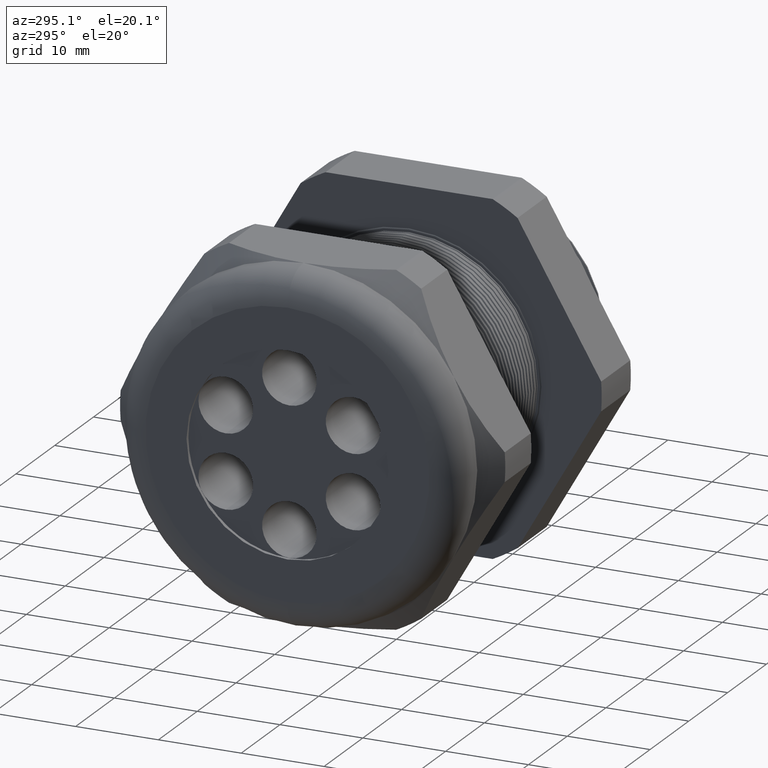
[diagram: clean part render]
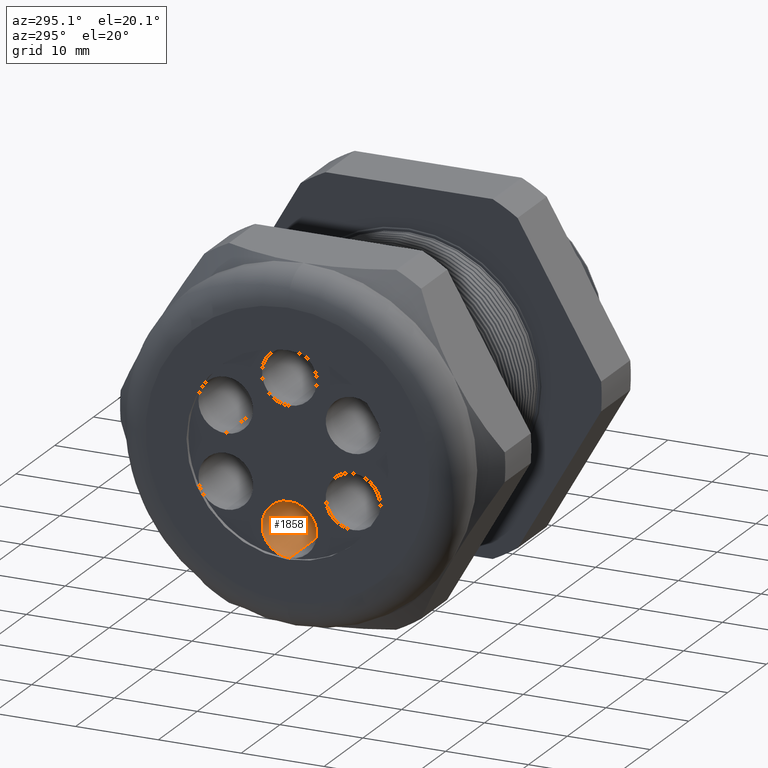
[diagram: same view with one face highlighted and labeled with its STEP entity id]
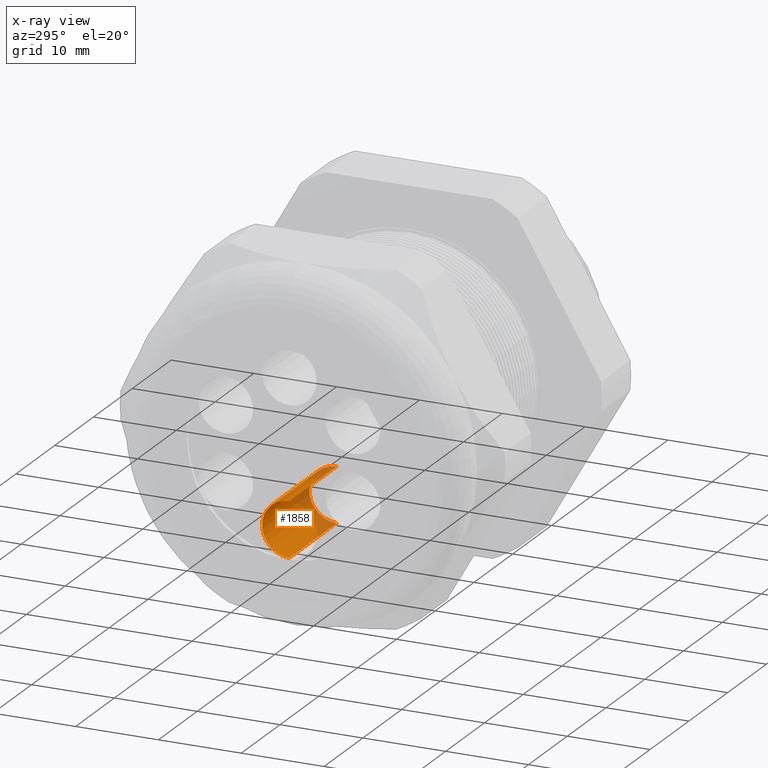
[diagram: x-ray of the same camera — body ghosted, the highlighted face saturated]
A machine part, auxiliary view. The second image highlights one B-rep face of the part: STEP entity #1858.
The next image is the same camera in x-ray: the body ghosted, the highlighted face saturated — about 23% of this face is hidden behind the body in this view.
In plain terms, the highlighted cylindrical surface (edge-blend (fillet) strip) has radius 3.302 mm, axis along (-1, 0, 0).
Its self-contained STEP definition (entity closure, byte-faithful):
#291 = ORIENTED_EDGE ( 'NONE', *, *, #1778, .T. ) ;
#1655 = VERTEX_POINT ( 'NONE', #4912 ) ;
#1734 = VERTEX_POINT ( 'NONE', #5030 ) ;
#1749 = EDGE_CURVE ( 'NONE', #1734, #1814, #5060, .T. ) ;
#1751 = VERTEX_POINT ( 'NONE', #5119 ) ;
#1753 = EDGE_CURVE ( 'NONE', #1655, #1751, #5118, .T. ) ;
#1778 = EDGE_CURVE ( 'NONE', #1814, #1751, #5129, .T. ) ;
#1790 = EDGE_CURVE ( 'NONE', #1734, #1655, #5178, .T. ) ;
#1814 = VERTEX_POINT ( 'NONE', #5206 ) ;
#1858 = ADVANCED_FACE ( 'NONE', ( #5268 ), #5267, .F. ) ;
#1861 = ORIENTED_EDGE ( 'NONE', *, *, #1749, .T. ) ;
#1862 = ORIENTED_EDGE ( 'NONE', *, *, #1753, .F. ) ;
#1875 = EDGE_LOOP ( 'NONE', ( #1862, #1878, #1861, #291 ) ) ;
#1878 = ORIENTED_EDGE ( 'NONE', *, *, #1790, .F. ) ;
#4912 = CARTESIAN_POINT ( 'NONE',  ( -1.339999999999999900, 1.592040838891559300E-017, -0.4794799999999999100 ) ) ;
#5030 = CARTESIAN_POINT ( 'NONE',  ( -1.339999999999999900, 0.0000000000000000000, -0.2194799999999999500 ) ) ;
#5057 = DIRECTION ( 'NONE',  ( -1.000000000000000000, 0.0000000000000000000, 0.0000000000000000000 ) ) ;
#5058 = VECTOR ( 'NONE', #5057, 39.37007874015748100 ) ;
#5059 = CARTESIAN_POINT ( 'NONE',  ( 0.1200000000000000900, 0.0000000000000000000, -0.2194799999999999500 ) ) ;
#5060 = LINE ( 'NONE', #5059, #5058 ) ;
#5115 = DIRECTION ( 'NONE',  ( -1.000000000000000000, 0.0000000000000000000, 0.0000000000000000000 ) ) ;
#5116 = VECTOR ( 'NONE', #5115, 39.37007874015748100 ) ;
#5117 = CARTESIAN_POINT ( 'NONE',  ( 0.1200000000000000900, 1.592040838891558700E-017, -0.4794799999999999100 ) ) ;
#5118 = LINE ( 'NONE', #5117, #5116 ) ;
#5119 = CARTESIAN_POINT ( 'NONE',  ( -1.820000000000000100, 1.592040838891559300E-017, -0.4794799999999999100 ) ) ;
#5126 = DIRECTION ( 'NONE',  ( 0.0000000000000000000, 0.0000000000000000000, 1.000000000000000000 ) ) ;
#5127 = DIRECTION ( 'NONE',  ( -1.000000000000000000, 0.0000000000000000000, 0.0000000000000000000 ) ) ;
#5128 = AXIS2_PLACEMENT_3D ( 'NONE', #5135, #5127, #5126 ) ;
#5129 = CIRCLE ( 'NONE', #5128, 0.1299999999999999800 ) ;
#5135 = CARTESIAN_POINT ( 'NONE',  ( -1.820000000000000100, 0.0000000000000000000, -0.3494799999999999000 ) ) ;
#5174 = DIRECTION ( 'NONE',  ( 0.0000000000000000000, 0.0000000000000000000, 1.000000000000000000 ) ) ;
#5175 = DIRECTION ( 'NONE',  ( -1.000000000000000000, 0.0000000000000000000, 0.0000000000000000000 ) ) ;
#5176 = CARTESIAN_POINT ( 'NONE',  ( -1.339999999999999900, 0.0000000000000000000, -0.3494799999999999000 ) ) ;
#5177 = AXIS2_PLACEMENT_3D ( 'NONE', #5176, #5175, #5174 ) ;
#5178 = CIRCLE ( 'NONE', #5177, 0.1299999999999999800 ) ;
#5206 = CARTESIAN_POINT ( 'NONE',  ( -1.820000000000000100, 0.0000000000000000000, -0.2194799999999999500 ) ) ;
#5263 = DIRECTION ( 'NONE',  ( 0.0000000000000000000, 0.0000000000000000000, 1.000000000000000000 ) ) ;
#5264 = DIRECTION ( 'NONE',  ( -1.000000000000000000, 0.0000000000000000000, 0.0000000000000000000 ) ) ;
#5265 = AXIS2_PLACEMENT_3D ( 'NONE', #5273, #5264, #5263 ) ;
#5267 = CYLINDRICAL_SURFACE ( 'NONE', #5265, 0.1299999999999999800 ) ;
#5268 = FACE_OUTER_BOUND ( 'NONE', #1875, .T. ) ;
#5273 = CARTESIAN_POINT ( 'NONE',  ( 0.1200000000000000900, 0.0000000000000000000, -0.3494799999999999000 ) ) ;